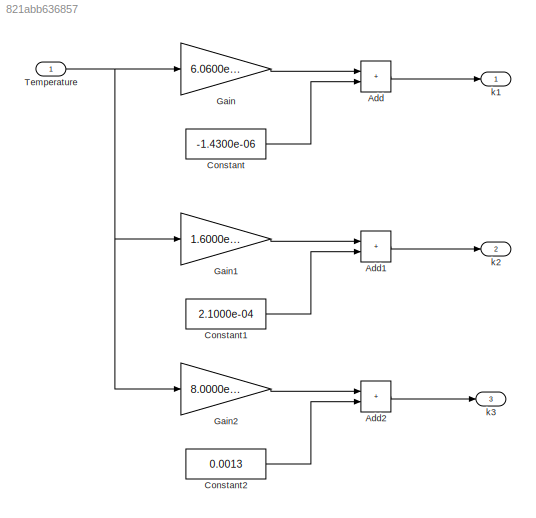
MODEL slx_821abb636857
KIND model
CONFIG AbsTol = auto
CONFIG EnableMultiTasking = off
CONFIG FixedStep = auto
CONFIG MaxStep = auto
CONFIG MinStep = auto
CONFIG RelTol = 1e-3
CONFIG SampleTimeConstraint = Unconstrained
CONFIG SolverName = VariableStepAuto
CONFIG StartTime = 0.0
CONFIG StopTime = 10.0
BLOCK [Sum] Add
  IconShape = rectangular
BLOCK [Sum] Add1
  IconShape = rectangular
BLOCK [Sum] Add2
  IconShape = rectangular
BLOCK [Constant] Constant
  Value = -1.4300e-06
BLOCK [Constant] Constant1
  Value = 2.1000e-04
BLOCK [Constant] Constant2
  Value = 0.0013
BLOCK [Gain] Gain
  Gain = 6.0600e-08
BLOCK [Gain] Gain1
  Gain = 1.6000e-06
BLOCK [Gain] Gain2
  Gain = 8.0000e-06
BLOCK [Inport] Temperature
BLOCK [Outport] k1
BLOCK [Outport] k2
  Port = 2
BLOCK [Outport] k3
  Port = 3
LINE Add1:1 -> k2:1
LINE Add2:1 -> k3:1
LINE Add:1 -> k1:1
LINE Constant1:1 -> Add1:2
LINE Constant2:1 -> Add2:2
LINE Constant:1 -> Add:2
LINE Gain1:1 -> Add1:1
LINE Gain2:1 -> Add2:1
LINE Gain:1 -> Add:1
NET Temperature:1 -> Gain1:1, Gain2:1, Gain:1
note: NET lines group one-source signal fan-out (src -> all destinations, sorted); 1:1 wires keep LINE
